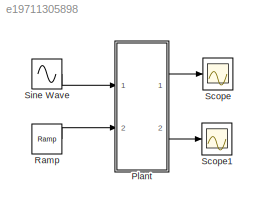
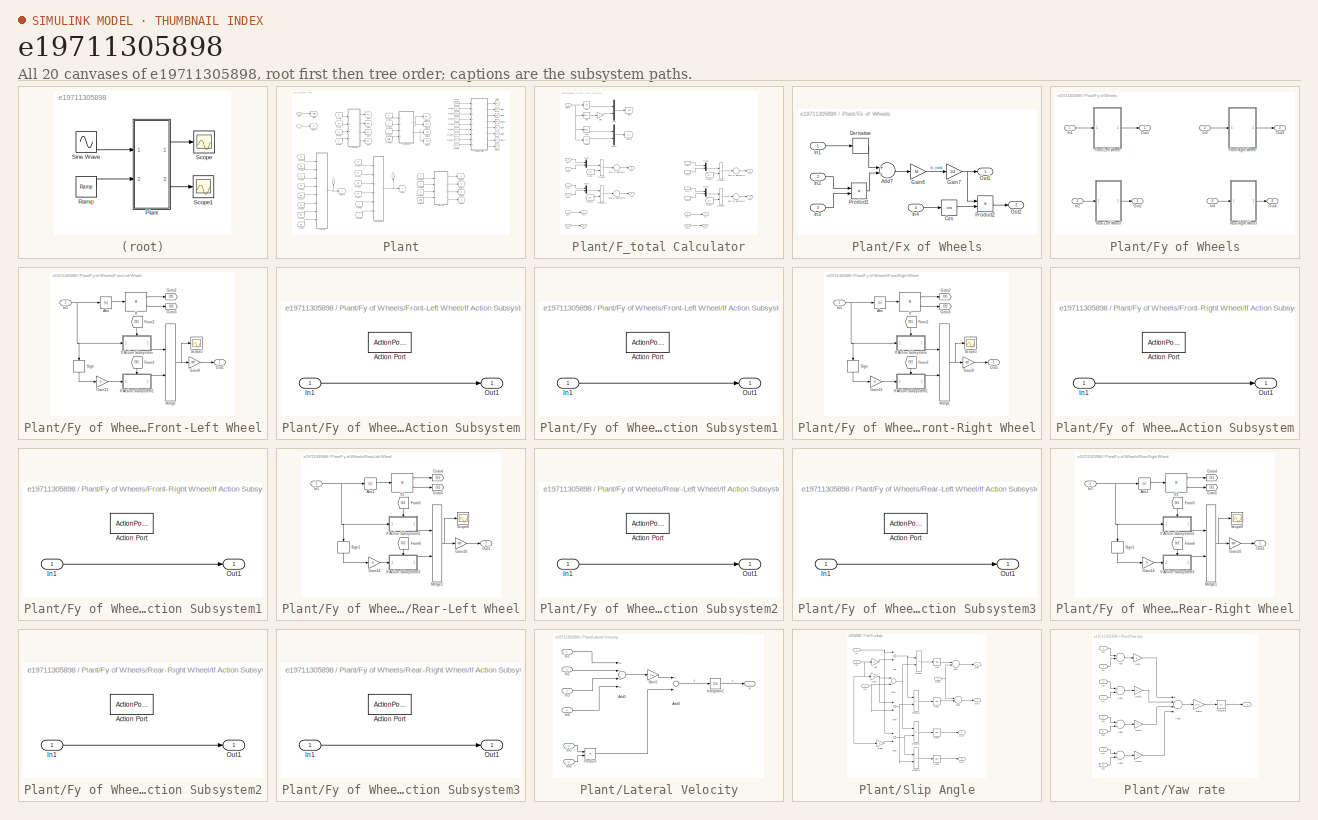
[diagram: thumbnail index - all 20 canvases of the model, root first then tree order]
MODEL slx_e19711305898
KIND model
CONFIG AbsTol = auto
CONFIG EnableMultiTasking = off
CONFIG FixedStep = auto
CONFIG MaxStep = auto
CONFIG MinStep = auto
CONFIG RelTol = 1e-3
CONFIG SampleTimeConstraint = Unconstrained
CONFIG Solver = VariableStepAuto
CONFIG SolverName = VariableStepAuto
CONFIG StartTime = 0.0
CONFIG StopTime = 50
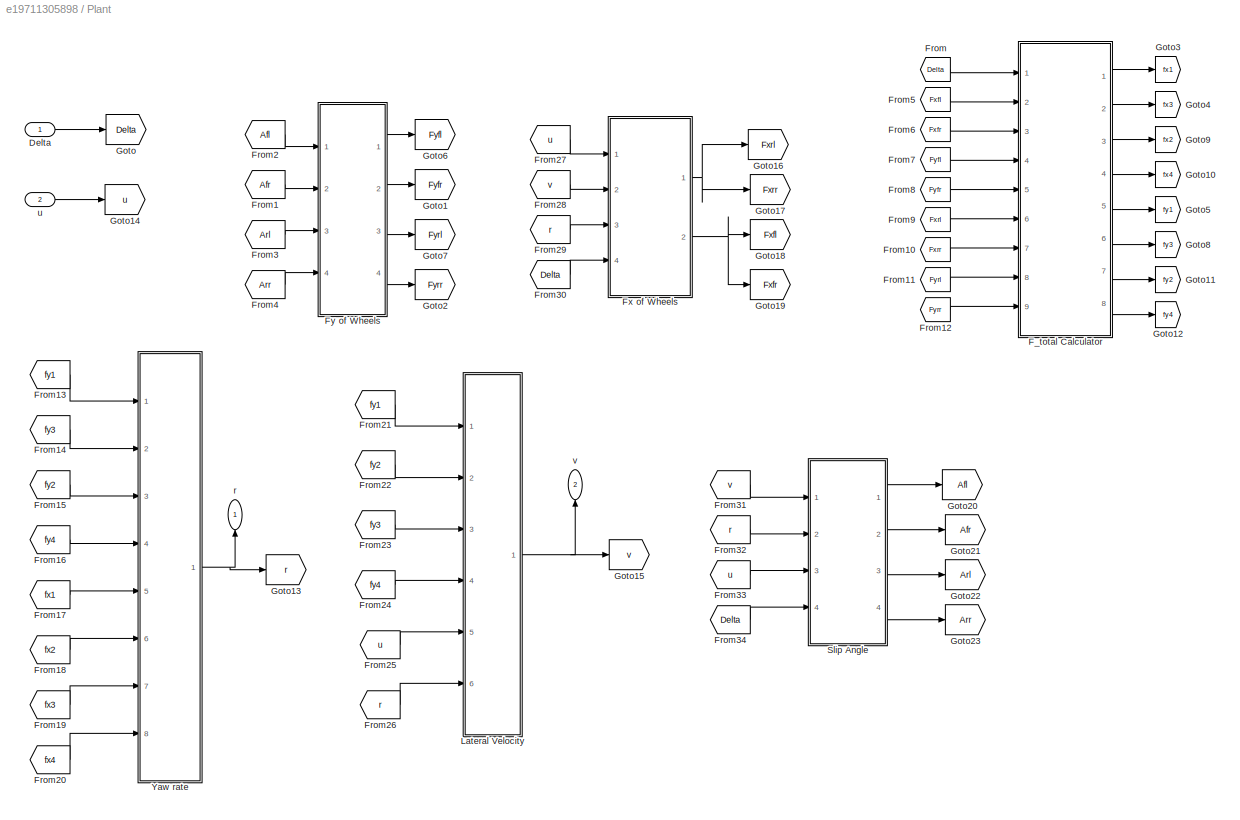
BLOCK [SubSystem] Plant
  Ports = [2, 2]
  RequestExecContextInheritance = off
BLOCK [Inport] Plant/Delta
  IconDisplay = Port number
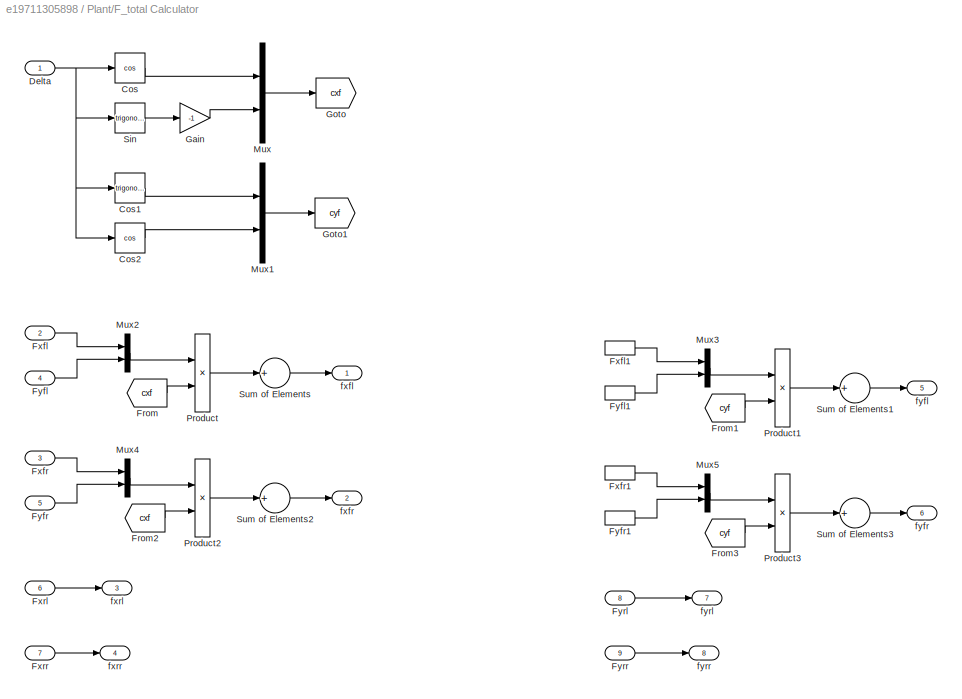
BLOCK [SubSystem] Plant/F_total Calculator
  Ports = [9, 8]
  RequestExecContextInheritance = off
BLOCK [Trigonometry] Plant/F_total Calculator/Cos
  Operator = cos
  Ports = [1, 1]
BLOCK [Trigonometry] Plant/F_total Calculator/Cos1
  Ports = [1, 1]
BLOCK [Trigonometry] Plant/F_total Calculator/Cos2
  Operator = cos
  Ports = [1, 1]
BLOCK [Inport] Plant/F_total Calculator/Delta
  IconDisplay = Port number
BLOCK [From] Plant/F_total Calculator/From
  GotoTag = cxf
BLOCK [From] Plant/F_total Calculator/From1
  GotoTag = cyf
BLOCK [From] Plant/F_total Calculator/From2
  GotoTag = cxf
BLOCK [From] Plant/F_total Calculator/From3
  GotoTag = cyf
BLOCK [Inport] Plant/F_total Calculator/Fxfl
  IconDisplay = Port number
  Port = 2
BLOCK [InportShadow] Plant/F_total Calculator/Fxfl1
  IconDisplay = Port number
  Port = 2
BLOCK [Inport] Plant/F_total Calculator/Fxfr
  IconDisplay = Port number
  Port = 3
BLOCK [InportShadow] Plant/F_total Calculator/Fxfr1
  IconDisplay = Port number
  Port = 3
BLOCK [Inport] Plant/F_total Calculator/Fxrl
  IconDisplay = Port number
  Port = 6
BLOCK [Inport] Plant/F_total Calculator/Fxrr
  IconDisplay = Port number
  Port = 7
BLOCK [Inport] Plant/F_total Calculator/Fyfl
  IconDisplay = Port number
  Port = 4
BLOCK [InportShadow] Plant/F_total Calculator/Fyfl1
  IconDisplay = Port number
  Port = 4
BLOCK [Inport] Plant/F_total Calculator/Fyfr
  IconDisplay = Port number
  Port = 5
BLOCK [InportShadow] Plant/F_total Calculator/Fyfr1
  IconDisplay = Port number
  Port = 5
BLOCK [Inport] Plant/F_total Calculator/Fyrl
  IconDisplay = Port number
  Port = 8
BLOCK [Inport] Plant/F_total Calculator/Fyrr
  IconDisplay = Port number
  Port = 9
BLOCK [Gain] Plant/F_total Calculator/Gain
  Gain = -1
  OutDataTypeStr = Inherit: Inherit via internal rule
  ParamDataTypeStr = Inherit: Inherit via internal rule
  SaturateOnIntegerOverflow = off
BLOCK [Goto] Plant/F_total Calculator/Goto
  GotoTag = cxf
BLOCK [Goto] Plant/F_total Calculator/Goto1
  GotoTag = cyf
BLOCK [Mux] Plant/F_total Calculator/Mux
  DisplayOption = bar
  Inputs = 2
  Ports = [2, 1]
BLOCK [Mux] Plant/F_total Calculator/Mux1
  DisplayOption = bar
  Inputs = 2
  Ports = [2, 1]
BLOCK [Mux] Plant/F_total Calculator/Mux2
  DisplayOption = bar
  Inputs = 2
  Ports = [2, 1]
BLOCK [Mux] Plant/F_total Calculator/Mux3
  DisplayOption = bar
  Inputs = 2
  Ports = [2, 1]
BLOCK [Mux] Plant/F_total Calculator/Mux4
  DisplayOption = bar
  Inputs = 2
  Ports = [2, 1]
BLOCK [Mux] Plant/F_total Calculator/Mux5
  DisplayOption = bar
  Inputs = 2
  Ports = [2, 1]
BLOCK [Product] Plant/F_total Calculator/Product
  InputSameDT = off
  OutDataTypeStr = Inherit: Inherit via internal rule
  Ports = [2, 1]
  RndMeth = Floor
  SaturateOnIntegerOverflow = off
BLOCK [Product] Plant/F_total Calculator/Product1
  InputSameDT = off
  OutDataTypeStr = Inherit: Inherit via internal rule
  Ports = [2, 1]
  RndMeth = Floor
  SaturateOnIntegerOverflow = off
BLOCK [Product] Plant/F_total Calculator/Product2
  InputSameDT = off
  OutDataTypeStr = Inherit: Inherit via internal rule
  Ports = [2, 1]
  RndMeth = Floor
  SaturateOnIntegerOverflow = off
BLOCK [Product] Plant/F_total Calculator/Product3
  InputSameDT = off
  OutDataTypeStr = Inherit: Inherit via internal rule
  Ports = [2, 1]
  RndMeth = Floor
  SaturateOnIntegerOverflow = off
BLOCK [Trigonometry] Plant/F_total Calculator/Sin
  Ports = [1, 1]
BLOCK [Sum] Plant/F_total Calculator/Sum of Elements
  InputSameDT = off
  Inputs = +
  OutDataTypeStr = Inherit: Inherit via internal rule
  Ports = [1, 1]
  SaturateOnIntegerOverflow = off
BLOCK [Sum] Plant/F_total Calculator/Sum of Elements1
  InputSameDT = off
  Inputs = +
  OutDataTypeStr = Inherit: Inherit via internal rule
  Ports = [1, 1]
  SaturateOnIntegerOverflow = off
BLOCK [Sum] Plant/F_total Calculator/Sum of Elements2
  InputSameDT = off
  Inputs = +
  OutDataTypeStr = Inherit: Inherit via internal rule
  Ports = [1, 1]
  SaturateOnIntegerOverflow = off
BLOCK [Sum] Plant/F_total Calculator/Sum of Elements3
  InputSameDT = off
  Inputs = +
  OutDataTypeStr = Inherit: Inherit via internal rule
  Ports = [1, 1]
  SaturateOnIntegerOverflow = off
BLOCK [Outport] Plant/F_total Calculator/fxfl
  IconDisplay = Port number
BLOCK [Outport] Plant/F_total Calculator/fxfr
  IconDisplay = Port number
  Port = 2
BLOCK [Outport] Plant/F_total Calculator/fxrl
  IconDisplay = Port number
  Port = 3
BLOCK [Outport] Plant/F_total Calculator/fxrr
  IconDisplay = Port number
  Port = 4
BLOCK [Outport] Plant/F_total Calculator/fyfl
  IconDisplay = Port number
  Port = 5
BLOCK [Outport] Plant/F_total Calculator/fyfr
  IconDisplay = Port number
  Port = 6
BLOCK [Outport] Plant/F_total Calculator/fyrl
  IconDisplay = Port number
  Port = 7
BLOCK [Outport] Plant/F_total Calculator/fyrr
  IconDisplay = Port number
  Port = 8
BLOCK [From] Plant/From
  GotoTag = Delta
BLOCK [From] Plant/From1
  GotoTag = Afr
BLOCK [From] Plant/From10
  GotoTag = Fxrr
BLOCK [From] Plant/From11
  GotoTag = Fyrl
BLOCK [From] Plant/From12
  GotoTag = Fyrr
BLOCK [From] Plant/From13
  GotoTag = fy1
BLOCK [From] Plant/From14
  GotoTag = fy3
BLOCK [From] Plant/From15
  GotoTag = fy2
BLOCK [From] Plant/From16
  GotoTag = fy4
BLOCK [From] Plant/From17
  GotoTag = fx1
BLOCK [From] Plant/From18
  GotoTag = fx2
BLOCK [From] Plant/From19
  GotoTag = fx3
BLOCK [From] Plant/From2
  GotoTag = Afl
BLOCK [From] Plant/From20
  GotoTag = fx4
BLOCK [From] Plant/From21
  GotoTag = fy1
BLOCK [From] Plant/From22
  GotoTag = fy2
BLOCK [From] Plant/From23
  GotoTag = fy3
BLOCK [From] Plant/From24
  GotoTag = fy4
BLOCK [From] Plant/From25
  GotoTag = u
BLOCK [From] Plant/From26
  GotoTag = r
BLOCK [From] Plant/From27
  GotoTag = u
BLOCK [From] Plant/From28
  GotoTag = v
BLOCK [From] Plant/From29
  GotoTag = r
BLOCK [From] Plant/From3
  GotoTag = Arl
BLOCK [From] Plant/From30
  GotoTag = Delta
BLOCK [From] Plant/From31
  GotoTag = v
BLOCK [From] Plant/From32
  GotoTag = r
BLOCK [From] Plant/From33
  GotoTag = u
BLOCK [From] Plant/From34
  GotoTag = Delta
BLOCK [From] Plant/From4
  GotoTag = Arr
BLOCK [From] Plant/From5
  GotoTag = Fxfl
BLOCK [From] Plant/From6
  GotoTag = Fxfr
BLOCK [From] Plant/From7
  GotoTag = Fyfl
BLOCK [From] Plant/From8
  GotoTag = Fyfr
BLOCK [From] Plant/From9
  GotoTag = Fxrl
BLOCK [SubSystem] Plant/Fx of Wheels
  Ports = [4, 2]
  RequestExecContextInheritance = off
BLOCK [Sum] Plant/Fx of Wheels/Add7
  InputSameDT = off
  Inputs = +-
  OutDataTypeStr = Inherit: Inherit via internal rule
  Ports = [2, 1]
  SaturateOnIntegerOverflow = off
BLOCK [Trigonometry] Plant/Fx of Wheels/Cos
  Operator = cos
  Ports = [1, 1]
BLOCK [Derivative] Plant/Fx of Wheels/Derivative
BLOCK [Gain] Plant/Fx of Wheels/Gain6
  Gain = M
  OutDataTypeStr = Inherit: Inherit via internal rule
  ParamDataTypeStr = Inherit: Inherit via internal rule
  SaturateOnIntegerOverflow = off
BLOCK [Gain] Plant/Fx of Wheels/Gain7
  Gain = 1/4
  OutDataTypeStr = Inherit: Inherit via internal rule
  ParamDataTypeStr = Inherit: Inherit via internal rule
  SaturateOnIntegerOverflow = off
BLOCK [Inport] Plant/Fx of Wheels/In1
  IconDisplay = Port number
BLOCK [Inport] Plant/Fx of Wheels/In2
  IconDisplay = Port number
  Port = 2
BLOCK [Inport] Plant/Fx of Wheels/In3
  IconDisplay = Port number
  Port = 3
BLOCK [Inport] Plant/Fx of Wheels/In4
  IconDisplay = Port number
  Port = 4
BLOCK [Outport] Plant/Fx of Wheels/Out1
  IconDisplay = Port number
BLOCK [Outport] Plant/Fx of Wheels/Out2
  IconDisplay = Port number
  Port = 2
BLOCK [Product] Plant/Fx of Wheels/Product1
  InputSameDT = off
  OutDataTypeStr = Inherit: Inherit via internal rule
  Ports = [2, 1]
  RndMeth = Floor
  SaturateOnIntegerOverflow = off
BLOCK [Product] Plant/Fx of Wheels/Product2
  InputSameDT = off
  Inputs = */
  OutDataTypeStr = Inherit: Inherit via internal rule
  Ports = [2, 1]
  RndMeth = Floor
  SaturateOnIntegerOverflow = off
BLOCK [SubSystem] Plant/Fy of Wheels
  Ports = [4, 4]
  RequestExecContextInheritance = off
BLOCK [SubSystem] Plant/Fy of Wheels/Front-Left Wheel
  Ports = [1, 1]
  RequestExecContextInheritance = off
BLOCK [Abs] Plant/Fy of Wheels/Front-Left Wheel/Abs
  SaturateOnIntegerOverflow = off
BLOCK [From] Plant/Fy of Wheels/Front-Left Wheel/From2
  GotoTag = Of1
BLOCK [From] Plant/Fy of Wheels/Front-Left Wheel/From3
  GotoTag = Of2
BLOCK [Gain] Plant/Fy of Wheels/Front-Left Wheel/Gain13
  Gain = tr
  OutDataTypeStr = Inherit: Inherit via internal rule
  ParamDataTypeStr = Inherit: Inherit via internal rule
  SaturateOnIntegerOverflow = off
BLOCK [Gain] Plant/Fy of Wheels/Front-Left Wheel/Gain9
  Gain = caf
  OutDataTypeStr = Inherit: Inherit via internal rule
  ParamDataTypeStr = Inherit: Inherit via internal rule
  SaturateOnIntegerOverflow = off
BLOCK [Goto] Plant/Fy of Wheels/Front-Left Wheel/Goto2
  GotoTag = Of1
BLOCK [Goto] Plant/Fy of Wheels/Front-Left Wheel/Goto3
  GotoTag = Of2
BLOCK [If] Plant/Fy of Wheels/Front-Left Wheel/If
  IfExpression = u1 <tr
  Ports = [1, 2]
BLOCK [SubSystem] Plant/Fy of Wheels/Front-Left Wheel/If Action Subsystem
  Ports = [1, 1, 0, 0, 0, 0, 0, 1]
  RequestExecContextInheritance = off
  TreatAsAtomicUnit = on
BLOCK [ActionPort] Plant/Fy of Wheels/Front-Left Wheel/If Action Subsystem/Action Port
  ActionPortLabel = if(u1 <tr)
BLOCK [Inport] Plant/Fy of Wheels/Front-Left Wheel/If Action Subsystem/In1
  IconDisplay = Port number
BLOCK [Outport] Plant/Fy of Wheels/Front-Left Wheel/If Action Subsystem/Out1
  IconDisplay = Port number
BLOCK [SubSystem] Plant/Fy of Wheels/Front-Left Wheel/If Action Subsystem1
  Ports = [1, 1, 0, 0, 0, 0, 0, 1]
  RequestExecContextInheritance = off
  TreatAsAtomicUnit = on
BLOCK [ActionPort] Plant/Fy of Wheels/Front-Left Wheel/If Action Subsystem1/Action Port
  ActionPortLabel = else
BLOCK [Inport] Plant/Fy of Wheels/Front-Left Wheel/If Action Subsystem1/In1
  IconDisplay = Port number
BLOCK [Outport] Plant/Fy of Wheels/Front-Left Wheel/If Action Subsystem1/Out1
  IconDisplay = Port number
BLOCK [Inport] Plant/Fy of Wheels/Front-Left Wheel/In1
  IconDisplay = Port number
BLOCK [Merge] Plant/Fy of Wheels/Front-Left Wheel/Merge
  Ports = [2, 1]
BLOCK [Outport] Plant/Fy of Wheels/Front-Left Wheel/Out1
  IconDisplay = Port number
BLOCK [Scope] Plant/Fy of Wheels/Front-Left Wheel/Scope5
  Floating = off
  NumInputPorts = 1
  Ports = [1]
  ScopeSpecificationString = Simulink.scopes.TimeScopeBlockCfg('CurrentConfiguration', extmgr.ConfigurationSet(extmgr.Configuration('Core','General UI',true),extmgr.Configuration('Core','Source UI',true),extmgr.Configuration('Sources','WiredSimulink',true,'DataLoggingVariableName','ScopeData2'),extmgr.Configuration('Visuals','Time Domain',true,'SerializedDisplays',{struct('MinYLimReal','-1.00000','MaxYLimReal','1.00000','YLab...<+1391ch>
BLOCK [Signum] Plant/Fy of Wheels/Front-Left Wheel/Sign
BLOCK [SubSystem] Plant/Fy of Wheels/Front-Right Wheel
  Ports = [1, 1]
  RequestExecContextInheritance = off
BLOCK [Abs] Plant/Fy of Wheels/Front-Right Wheel/Abs
  SaturateOnIntegerOverflow = off
BLOCK [From] Plant/Fy of Wheels/Front-Right Wheel/From2
  GotoTag = Of1
BLOCK [From] Plant/Fy of Wheels/Front-Right Wheel/From3
  GotoTag = Of2
BLOCK [Gain] Plant/Fy of Wheels/Front-Right Wheel/Gain13
  Gain = tr
  OutDataTypeStr = Inherit: Inherit via internal rule
  ParamDataTypeStr = Inherit: Inherit via internal rule
  SaturateOnIntegerOverflow = off
BLOCK [Gain] Plant/Fy of Wheels/Front-Right Wheel/Gain9
  Gain = caf
  OutDataTypeStr = Inherit: Inherit via internal rule
  ParamDataTypeStr = Inherit: Inherit via internal rule
  SaturateOnIntegerOverflow = off
BLOCK [Goto] Plant/Fy of Wheels/Front-Right Wheel/Goto2
  GotoTag = Of1
BLOCK [Goto] Plant/Fy of Wheels/Front-Right Wheel/Goto3
  GotoTag = Of2
BLOCK [If] Plant/Fy of Wheels/Front-Right Wheel/If
  IfExpression = u1 <tr
  Ports = [1, 2]
BLOCK [SubSystem] Plant/Fy of Wheels/Front-Right Wheel/If Action Subsystem
  Ports = [1, 1, 0, 0, 0, 0, 0, 1]
  RequestExecContextInheritance = off
  TreatAsAtomicUnit = on
BLOCK [ActionPort] Plant/Fy of Wheels/Front-Right Wheel/If Action Subsystem/Action Port
  ActionPortLabel = if(u1 <tr)
BLOCK [Inport] Plant/Fy of Wheels/Front-Right Wheel/If Action Subsystem/In1
  IconDisplay = Port number
BLOCK [Outport] Plant/Fy of Wheels/Front-Right Wheel/If Action Subsystem/Out1
  IconDisplay = Port number
BLOCK [SubSystem] Plant/Fy of Wheels/Front-Right Wheel/If Action Subsystem1
  Ports = [1, 1, 0, 0, 0, 0, 0, 1]
  RequestExecContextInheritance = off
  TreatAsAtomicUnit = on
BLOCK [ActionPort] Plant/Fy of Wheels/Front-Right Wheel/If Action Subsystem1/Action Port
  ActionPortLabel = else
BLOCK [Inport] Plant/Fy of Wheels/Front-Right Wheel/If Action Subsystem1/In1
  IconDisplay = Port number
BLOCK [Outport] Plant/Fy of Wheels/Front-Right Wheel/If Action Subsystem1/Out1
  IconDisplay = Port number
BLOCK [Inport] Plant/Fy of Wheels/Front-Right Wheel/In1
  IconDisplay = Port number
BLOCK [Merge] Plant/Fy of Wheels/Front-Right Wheel/Merge
  Ports = [2, 1]
BLOCK [Outport] Plant/Fy of Wheels/Front-Right Wheel/Out1
  IconDisplay = Port number
BLOCK [Scope] Plant/Fy of Wheels/Front-Right Wheel/Scope5
  Floating = off
  NumInputPorts = 1
  Ports = [1]
  ScopeSpecificationString = Simulink.scopes.TimeScopeBlockCfg('CurrentConfiguration', extmgr.ConfigurationSet(extmgr.Configuration('Core','General UI',true),extmgr.Configuration('Core','Source UI',true),extmgr.Configuration('Sources','WiredSimulink',true,'DataLoggingVariableName','ScopeData2'),extmgr.Configuration('Visuals','Time Domain',true,'SerializedDisplays',{struct('MinYLimReal','-1.00000','MaxYLimReal','1.00000','YLab...<+1391ch>
BLOCK [Signum] Plant/Fy of Wheels/Front-Right Wheel/Sign
BLOCK [Inport] Plant/Fy of Wheels/In1
  IconDisplay = Port number
BLOCK [Inport] Plant/Fy of Wheels/In2
  IconDisplay = Port number
  Port = 3
BLOCK [Inport] Plant/Fy of Wheels/In3
  IconDisplay = Port number
  Port = 2
BLOCK [Inport] Plant/Fy of Wheels/In4
  IconDisplay = Port number
  Port = 4
BLOCK [Outport] Plant/Fy of Wheels/Out1
  IconDisplay = Port number
BLOCK [Outport] Plant/Fy of Wheels/Out2
  IconDisplay = Port number
  Port = 3
BLOCK [Outport] Plant/Fy of Wheels/Out3
  IconDisplay = Port number
  Port = 2
BLOCK [Outport] Plant/Fy of Wheels/Out4
  IconDisplay = Port number
  Port = 4
BLOCK [SubSystem] Plant/Fy of Wheels/Rear-Left Wheel
  Ports = [1, 1]
  RequestExecContextInheritance = off
BLOCK [Abs] Plant/Fy of Wheels/Rear-Left Wheel/Abs1
  SaturateOnIntegerOverflow = off
BLOCK [From] Plant/Fy of Wheels/Rear-Left Wheel/From5
  GotoTag = Or1
BLOCK [From] Plant/Fy of Wheels/Rear-Left Wheel/From6
  GotoTag = Or2
BLOCK [Gain] Plant/Fy of Wheels/Rear-Left Wheel/Gain10
  Gain = car
  OutDataTypeStr = Inherit: Inherit via internal rule
  ParamDataTypeStr = Inherit: Inherit via internal rule
  SaturateOnIntegerOverflow = off
BLOCK [Gain] Plant/Fy of Wheels/Rear-Left Wheel/Gain14
  Gain = tr
  OutDataTypeStr = Inherit: Inherit via internal rule
  ParamDataTypeStr = Inherit: Inherit via internal rule
  SaturateOnIntegerOverflow = off
BLOCK [Goto] Plant/Fy of Wheels/Rear-Left Wheel/Goto4
  GotoTag = Or1
BLOCK [Goto] Plant/Fy of Wheels/Rear-Left Wheel/Goto5
  GotoTag = Or2
BLOCK [SubSystem] Plant/Fy of Wheels/Rear-Left Wheel/If Action Subsystem2
  Ports = [1, 1, 0, 0, 0, 0, 0, 1]
  RequestExecContextInheritance = off
  TreatAsAtomicUnit = on
BLOCK [ActionPort] Plant/Fy of Wheels/Rear-Left Wheel/If Action Subsystem2/Action Port
  ActionPortLabel = if(u1 <tr)
BLOCK [Inport] Plant/Fy of Wheels/Rear-Left Wheel/If Action Subsystem2/In1
  IconDisplay = Port number
BLOCK [Outport] Plant/Fy of Wheels/Rear-Left Wheel/If Action Subsystem2/Out1
  IconDisplay = Port number
BLOCK [SubSystem] Plant/Fy of Wheels/Rear-Left Wheel/If Action Subsystem3
  Ports = [1, 1, 0, 0, 0, 0, 0, 1]
  RequestExecContextInheritance = off
  TreatAsAtomicUnit = on
BLOCK [ActionPort] Plant/Fy of Wheels/Rear-Left Wheel/If Action Subsystem3/Action Port
  ActionPortLabel = else
BLOCK [Inport] Plant/Fy of Wheels/Rear-Left Wheel/If Action Subsystem3/In1
  IconDisplay = Port number
BLOCK [Outport] Plant/Fy of Wheels/Rear-Left Wheel/If Action Subsystem3/Out1
  IconDisplay = Port number
BLOCK [If] Plant/Fy of Wheels/Rear-Left Wheel/If1
  IfExpression = u1 <tr
  Ports = [1, 2]
BLOCK [Inport] Plant/Fy of Wheels/Rear-Left Wheel/In1
  IconDisplay = Port number
BLOCK [Merge] Plant/Fy of Wheels/Rear-Left Wheel/Merge1
  Ports = [2, 1]
BLOCK [Outport] Plant/Fy of Wheels/Rear-Left Wheel/Out1
  IconDisplay = Port number
BLOCK [Scope] Plant/Fy of Wheels/Rear-Left Wheel/Scope6
  Floating = off
  NumInputPorts = 1
  Ports = [1]
  ScopeSpecificationString = Simulink.scopes.TimeScopeBlockCfg('CurrentConfiguration', extmgr.ConfigurationSet(extmgr.Configuration('Core','General UI',true),extmgr.Configuration('Core','Source UI',true),extmgr.Configuration('Sources','WiredSimulink',true,'DataLoggingVariableName','ScopeData3'),extmgr.Configuration('Visuals','Time Domain',true,'SerializedDisplays',{struct('MinYLimReal','-0.01991','MaxYLimReal','0.13749','YLab...<+1417ch>
BLOCK [Signum] Plant/Fy of Wheels/Rear-Left Wheel/Sign1
BLOCK [SubSystem] Plant/Fy of Wheels/Rear-Right Wheel
  Ports = [1, 1]
  RequestExecContextInheritance = off
BLOCK [Abs] Plant/Fy of Wheels/Rear-Right Wheel/Abs1
  SaturateOnIntegerOverflow = off
BLOCK [From] Plant/Fy of Wheels/Rear-Right Wheel/From5
  GotoTag = Or1
BLOCK [From] Plant/Fy of Wheels/Rear-Right Wheel/From6
  GotoTag = Or2
BLOCK [Gain] Plant/Fy of Wheels/Rear-Right Wheel/Gain10
  Gain = car
  OutDataTypeStr = Inherit: Inherit via internal rule
  ParamDataTypeStr = Inherit: Inherit via internal rule
  SaturateOnIntegerOverflow = off
BLOCK [Gain] Plant/Fy of Wheels/Rear-Right Wheel/Gain14
  Gain = tr
  OutDataTypeStr = Inherit: Inherit via internal rule
  ParamDataTypeStr = Inherit: Inherit via internal rule
  SaturateOnIntegerOverflow = off
BLOCK [Goto] Plant/Fy of Wheels/Rear-Right Wheel/Goto4
  GotoTag = Or1
BLOCK [Goto] Plant/Fy of Wheels/Rear-Right Wheel/Goto5
  GotoTag = Or2
BLOCK [SubSystem] Plant/Fy of Wheels/Rear-Right Wheel/If Action Subsystem2
  Ports = [1, 1, 0, 0, 0, 0, 0, 1]
  RequestExecContextInheritance = off
  TreatAsAtomicUnit = on
BLOCK [ActionPort] Plant/Fy of Wheels/Rear-Right Wheel/If Action Subsystem2/Action Port
  ActionPortLabel = if(u1 <tr)
BLOCK [Inport] Plant/Fy of Wheels/Rear-Right Wheel/If Action Subsystem2/In1
  IconDisplay = Port number
BLOCK [Outport] Plant/Fy of Wheels/Rear-Right Wheel/If Action Subsystem2/Out1
  IconDisplay = Port number
BLOCK [SubSystem] Plant/Fy of Wheels/Rear-Right Wheel/If Action Subsystem3
  Ports = [1, 1, 0, 0, 0, 0, 0, 1]
  RequestExecContextInheritance = off
  TreatAsAtomicUnit = on
BLOCK [ActionPort] Plant/Fy of Wheels/Rear-Right Wheel/If Action Subsystem3/Action Port
  ActionPortLabel = else
BLOCK [Inport] Plant/Fy of Wheels/Rear-Right Wheel/If Action Subsystem3/In1
  IconDisplay = Port number
BLOCK [Outport] Plant/Fy of Wheels/Rear-Right Wheel/If Action Subsystem3/Out1
  IconDisplay = Port number
BLOCK [If] Plant/Fy of Wheels/Rear-Right Wheel/If1
  IfExpression = u1 <tr
  Ports = [1, 2]
BLOCK [Inport] Plant/Fy of Wheels/Rear-Right Wheel/In1
  IconDisplay = Port number
BLOCK [Merge] Plant/Fy of Wheels/Rear-Right Wheel/Merge1
  Ports = [2, 1]
BLOCK [Outport] Plant/Fy of Wheels/Rear-Right Wheel/Out1
  IconDisplay = Port number
BLOCK [Scope] Plant/Fy of Wheels/Rear-Right Wheel/Scope6
  Floating = off
  NumInputPorts = 1
  Ports = [1]
  ScopeSpecificationString = Simulink.scopes.TimeScopeBlockCfg('CurrentConfiguration', extmgr.ConfigurationSet(extmgr.Configuration('Core','General UI',true),extmgr.Configuration('Core','Source UI',true),extmgr.Configuration('Sources','WiredSimulink',true,'DataLoggingVariableName','ScopeData3'),extmgr.Configuration('Visuals','Time Domain',true,'SerializedDisplays',{struct('MinYLimReal','-0.01991','MaxYLimReal','0.13749','YLab...<+1417ch>
BLOCK [Signum] Plant/Fy of Wheels/Rear-Right Wheel/Sign1
BLOCK [Goto] Plant/Goto
  GotoTag = Delta
BLOCK [Goto] Plant/Goto1
  GotoTag = Fyfr
BLOCK [Goto] Plant/Goto10
  GotoTag = fx4
BLOCK [Goto] Plant/Goto11
  GotoTag = fy2
BLOCK [Goto] Plant/Goto12
  GotoTag = fy4
BLOCK [Goto] Plant/Goto13
  GotoTag = r
BLOCK [Goto] Plant/Goto14
  GotoTag = u
BLOCK [Goto] Plant/Goto15
  GotoTag = v
BLOCK [Goto] Plant/Goto16
  GotoTag = Fxrl
BLOCK [Goto] Plant/Goto17
  GotoTag = Fxrr
BLOCK [Goto] Plant/Goto18
  GotoTag = Fxfl
BLOCK [Goto] Plant/Goto19
  GotoTag = Fxfr
BLOCK [Goto] Plant/Goto2
  GotoTag = Fyrr
BLOCK [Goto] Plant/Goto20
  GotoTag = Afl
BLOCK [Goto] Plant/Goto21
  GotoTag = Afr
BLOCK [Goto] Plant/Goto22
  GotoTag = Arl
BLOCK [Goto] Plant/Goto23
  GotoTag = Arr
BLOCK [Goto] Plant/Goto3
  GotoTag = fx1
BLOCK [Goto] Plant/Goto4
  GotoTag = fx3
BLOCK [Goto] Plant/Goto5
  GotoTag = fy1
BLOCK [Goto] Plant/Goto6
  GotoTag = Fyfl
BLOCK [Goto] Plant/Goto7
  GotoTag = Fyrl
BLOCK [Goto] Plant/Goto8
  GotoTag = fy3
BLOCK [Goto] Plant/Goto9
  GotoTag = fx2
BLOCK [SubSystem] Plant/Lateral Velocity
  Ports = [6, 1]
  RequestExecContextInheritance = off
BLOCK [Sum] Plant/Lateral Velocity/Add5
  InputSameDT = off
  Inputs = ++++
  OutDataTypeStr = Inherit: Inherit via internal rule
  Ports = [4, 1]
  SaturateOnIntegerOverflow = off
BLOCK [Sum] Plant/Lateral Velocity/Add6
  InputSameDT = off
  Inputs = +-
  OutDataTypeStr = Inherit: Inherit via internal rule
  Ports = [2, 1]
  SaturateOnIntegerOverflow = off
BLOCK [Gain] Plant/Lateral Velocity/Gain5
  Gain = 1/M
  OutDataTypeStr = Inherit: Inherit via internal rule
  ParamDataTypeStr = Inherit: Inherit via internal rule
  SaturateOnIntegerOverflow = off
BLOCK [Inport] Plant/Lateral Velocity/In1
  IconDisplay = Port number
BLOCK [Inport] Plant/Lateral Velocity/In2
  IconDisplay = Port number
  Port = 2
BLOCK [Inport] Plant/Lateral Velocity/In3
  IconDisplay = Port number
  Port = 3
BLOCK [Inport] Plant/Lateral Velocity/In4
  IconDisplay = Port number
  Port = 4
BLOCK [Inport] Plant/Lateral Velocity/In5
  IconDisplay = Port number
  Port = 5
BLOCK [Inport] Plant/Lateral Velocity/In6
  IconDisplay = Port number
  Port = 6
BLOCK [Integrator] Plant/Lateral Velocity/Integrator1
  Ports = [1, 1]
BLOCK [Product] Plant/Lateral Velocity/Product
  InputSameDT = off
  OutDataTypeStr = Inherit: Inherit via internal rule
  Ports = [2, 1]
  RndMeth = Floor
  SaturateOnIntegerOverflow = off
BLOCK [Outport] Plant/Lateral Velocity/v
  IconDisplay = Port number
BLOCK [SubSystem] Plant/Slip Angle
  Ports = [4, 4]
  RequestExecContextInheritance = off
BLOCK [Sum] Plant/Slip Angle/Add
  InputSameDT = off
  OutDataTypeStr = Inherit: Inherit via internal rule
  Ports = [2, 1]
  SaturateOnIntegerOverflow = off
BLOCK [Sum] Plant/Slip Angle/Add1
  InputSameDT = off
  OutDataTypeStr = Inherit: Inherit via internal rule
  Ports = [2, 1]
  SaturateOnIntegerOverflow = off
BLOCK [Sum] Plant/Slip Angle/Add2
  InputSameDT = off
  Inputs = -+
  OutDataTypeStr = Inherit: Inherit via internal rule
  Ports = [2, 1]
  SaturateOnIntegerOverflow = off
BLOCK [Sum] Plant/Slip Angle/Add4
  InputSameDT = off
  Inputs = -+
  OutDataTypeStr = Inherit: Inherit via internal rule
  Ports = [2, 1]
  SaturateOnIntegerOverflow = off
BLOCK [Sum] Plant/Slip Angle/Add5
  InputSameDT = off
  Inputs = +-
  OutDataTypeStr = Inherit: Inherit via internal rule
  Ports = [2, 1]
  SaturateOnIntegerOverflow = off
BLOCK [Sum] Plant/Slip Angle/Add6
  InputSameDT = off
  Inputs = -+
  OutDataTypeStr = Inherit: Inherit via internal rule
  Ports = [2, 1]
  SaturateOnIntegerOverflow = off
BLOCK [Trigonometry] Plant/Slip Angle/Atan
  Operator = atan
  Ports = [1, 1]
BLOCK [Trigonometry] Plant/Slip Angle/Atan1
  Operator = atan
  Ports = [1, 1]
BLOCK [Trigonometry] Plant/Slip Angle/Atan2
  Operator = atan
  Ports = [1, 1]
BLOCK [Trigonometry] Plant/Slip Angle/Atan3
  Operator = atan
  Ports = [1, 1]
BLOCK [Inport] Plant/Slip Angle/Delta
  IconDisplay = Port number
  Port = 4
BLOCK [Gain] Plant/Slip Angle/Gain
  Gain = a
  OutDataTypeStr = Inherit: Inherit via internal rule
  ParamDataTypeStr = Inherit: Inherit via internal rule
  SaturateOnIntegerOverflow = off
BLOCK [Gain] Plant/Slip Angle/Gain1
  Gain = T/2
  OutDataTypeStr = Inherit: Inherit via internal rule
  ParamDataTypeStr = Inherit: Inherit via internal rule
  SaturateOnIntegerOverflow = off
BLOCK [Gain] Plant/Slip Angle/Gain2
  Gain = b
  OutDataTypeStr = Inherit: Inherit via internal rule
  ParamDataTypeStr = Inherit: Inherit via internal rule
  SaturateOnIntegerOverflow = off
BLOCK [Inport] Plant/Slip Angle/In1
  IconDisplay = Port number
BLOCK [Inport] Plant/Slip Angle/In2
  IconDisplay = Port number
  Port = 2
BLOCK [Inport] Plant/Slip Angle/In3
  IconDisplay = Port number
  Port = 3
BLOCK [Outport] Plant/Slip Angle/Out1
  IconDisplay = Port number
BLOCK [Outport] Plant/Slip Angle/Out2
  IconDisplay = Port number
  Port = 2
BLOCK [Outport] Plant/Slip Angle/Out3
  IconDisplay = Port number
  Port = 3
BLOCK [Outport] Plant/Slip Angle/Out4
  IconDisplay = Port number
  Port = 4
BLOCK [Product] Plant/Slip Angle/Product
  InputSameDT = off
  Inputs = */
  OutDataTypeStr = Inherit: Inherit via internal rule
  Ports = [2, 1]
  RndMeth = Floor
  SaturateOnIntegerOverflow = off
BLOCK [Product] Plant/Slip Angle/Product1
  InputSameDT = off
  Inputs = */
  OutDataTypeStr = Inherit: Inherit via internal rule
  Ports = [2, 1]
  RndMeth = Floor
  SaturateOnIntegerOverflow = off
BLOCK [Product] Plant/Slip Angle/Product2
  InputSameDT = off
  Inputs = /*
  OutDataTypeStr = Inherit: Inherit via internal rule
  Ports = [2, 1]
  RndMeth = Floor
  SaturateOnIntegerOverflow = off
BLOCK [Product] Plant/Slip Angle/Product3
  InputSameDT = off
  Inputs = */
  OutDataTypeStr = Inherit: Inherit via internal rule
  Ports = [2, 1]
  RndMeth = Floor
  SaturateOnIntegerOverflow = off
BLOCK [SubSystem] Plant/Yaw rate
  Ports = [8, 1]
  RequestExecContextInheritance = off
BLOCK [Sum] Plant/Yaw rate/Add
  InputSameDT = off
  OutDataTypeStr = Inherit: Inherit via internal rule
  Ports = [2, 1]
  SaturateOnIntegerOverflow = off
BLOCK [Sum] Plant/Yaw rate/Add1
  InputSameDT = off
  OutDataTypeStr = Inherit: Inherit via internal rule
  Ports = [2, 1]
  SaturateOnIntegerOverflow = off
BLOCK [Sum] Plant/Yaw rate/Add2
  InputSameDT = off
  OutDataTypeStr = Inherit: Inherit via internal rule
  Ports = [2, 1]
  SaturateOnIntegerOverflow = off
BLOCK [Sum] Plant/Yaw rate/Add3
  InputSameDT = off
  OutDataTypeStr = Inherit: Inherit via internal rule
  Ports = [2, 1]
  SaturateOnIntegerOverflow = off
BLOCK [Sum] Plant/Yaw rate/Add4
  InputSameDT = off
  Inputs = +-+-
  OutDataTypeStr = Inherit: Inherit via internal rule
  Ports = [4, 1]
  SaturateOnIntegerOverflow = off
BLOCK [Gain] Plant/Yaw rate/Gain
  Gain = a
  OutDataTypeStr = Inherit: Inherit via internal rule
  ParamDataTypeStr = Inherit: Inherit via internal rule
  SaturateOnIntegerOverflow = off
BLOCK [Gain] Plant/Yaw rate/Gain1
  Gain = b
  OutDataTypeStr = Inherit: Inherit via internal rule
  ParamDataTypeStr = Inherit: Inherit via internal rule
  SaturateOnIntegerOverflow = off
BLOCK [Gain] Plant/Yaw rate/Gain2
  Gain = T/2
  OutDataTypeStr = Inherit: Inherit via internal rule
  ParamDataTypeStr = Inherit: Inherit via internal rule
  SaturateOnIntegerOverflow = off
BLOCK [Gain] Plant/Yaw rate/Gain3
  Gain = T/2
  OutDataTypeStr = Inherit: Inherit via internal rule
  ParamDataTypeStr = Inherit: Inherit via internal rule
  SaturateOnIntegerOverflow = off
BLOCK [Gain] Plant/Yaw rate/Gain4
  Gain = 1/Iz
  OutDataTypeStr = Inherit: Inherit via internal rule
  ParamDataTypeStr = Inherit: Inherit via internal rule
  SaturateOnIntegerOverflow = off
BLOCK [Inport] Plant/Yaw rate/In1
  IconDisplay = Port number
BLOCK [Inport] Plant/Yaw rate/In2
  IconDisplay = Port number
  Port = 2
BLOCK [Inport] Plant/Yaw rate/In3
  IconDisplay = Port number
  Port = 3
BLOCK [Inport] Plant/Yaw rate/In4
  IconDisplay = Port number
  Port = 4
BLOCK [Inport] Plant/Yaw rate/In5
  IconDisplay = Port number
  Port = 5
BLOCK [Inport] Plant/Yaw rate/In6
  IconDisplay = Port number
  Port = 6
BLOCK [Inport] Plant/Yaw rate/In7
  IconDisplay = Port number
  Port = 7
BLOCK [Inport] Plant/Yaw rate/In8
  IconDisplay = Port number
  Port = 8
BLOCK [Integrator] Plant/Yaw rate/Integrator
  Ports = [1, 1]
BLOCK [Outport] Plant/Yaw rate/r
  IconDisplay = Port number
BLOCK [Outport] Plant/r
  IconDisplay = Port number
BLOCK [Inport] Plant/u
  IconDisplay = Port number
  Port = 2
BLOCK [Outport] Plant/v
  IconDisplay = Port number
  Port = 2
BLOCK [Reference] Ramp  REF=simulink/Sources/Ramp
  Ports = [0, 1]
  SourceBlock = simulink/Sources/Ramp
  SourceProductBaseCode = SL
  SourceProductName = Simulink
  SourceType = Ramp
BLOCK [Scope] Scope
  Floating = off
  NumInputPorts = 1
  Ports = [1]
  ScopeSpecificationString = Simulink.scopes.TimeScopeBlockCfg('CurrentConfiguration', extmgr.ConfigurationSet(extmgr.Configuration('Core','General UI',true),extmgr.Configuration('Core','Source UI',true),extmgr.Configuration('Sources','WiredSimulink',true,'DataLoggingVariableName','ScopeData1'),extmgr.Configuration('Visuals','Time Domain',true,'SerializedDisplays',{struct('MinYLimReal','-0.82445','MaxYLimReal','0.85112','YLab...<+1366ch>
BLOCK [Scope] Scope1
  Floating = off
  NumInputPorts = 1
  Ports = [1]
  ScopeSpecificationString = Simulink.scopes.TimeScopeBlockCfg('CurrentConfiguration', extmgr.ConfigurationSet(extmgr.Configuration('Core','General UI',true),extmgr.Configuration('Core','Source UI',true),extmgr.Configuration('Sources','WiredSimulink',true,'DataLoggingVariableName','ScopeData2'),extmgr.Configuration('Visuals','Time Domain',true,'SerializedDisplays',{struct('MinYLimReal','-0.46244','MaxYLimReal','0.4976','YLabe...<+1362ch>
BLOCK [Sin] Sine Wave
  Amplitude = 6*pi/180
  Ports = [0, 1]
  SampleTime = 0
LINE Plant/Delta:1 -> Plant/Goto:1
LINE Plant/F_total Calculator/Cos1:1 -> Plant/F_total Calculator/Mux1:1
LINE Plant/F_total Calculator/Cos2:1 -> Plant/F_total Calculator/Mux1:2
LINE Plant/F_total Calculator/Cos:1 -> Plant/F_total Calculator/Mux:1
NET Plant/F_total Calculator/Delta:1 -> Plant/F_total Calculator/Cos1:1, Plant/F_total Calculator/Cos2:1, Plant/F_total Calculator/Cos:1, Plant/F_total Calculator/Sin:1
LINE Plant/F_total Calculator/From1:1 -> Plant/F_total Calculator/Product1:2
LINE Plant/F_total Calculator/From2:1 -> Plant/F_total Calculator/Product2:2
LINE Plant/F_total Calculator/From3:1 -> Plant/F_total Calculator/Product3:2
LINE Plant/F_total Calculator/From:1 -> Plant/F_total Calculator/Product:2
LINE Plant/F_total Calculator/Fxfl1:1 -> Plant/F_total Calculator/Mux3:1
LINE Plant/F_total Calculator/Fxfl:1 -> Plant/F_total Calculator/Mux2:1
LINE Plant/F_total Calculator/Fxfr1:1 -> Plant/F_total Calculator/Mux5:1
LINE Plant/F_total Calculator/Fxfr:1 -> Plant/F_total Calculator/Mux4:1
LINE Plant/F_total Calculator/Fxrl:1 -> Plant/F_total Calculator/fxrl:1
LINE Plant/F_total Calculator/Fxrr:1 -> Plant/F_total Calculator/fxrr:1
LINE Plant/F_total Calculator/Fyfl1:1 -> Plant/F_total Calculator/Mux3:2
LINE Plant/F_total Calculator/Fyfl:1 -> Plant/F_total Calculator/Mux2:2
LINE Plant/F_total Calculator/Fyfr1:1 -> Plant/F_total Calculator/Mux5:2
LINE Plant/F_total Calculator/Fyfr:1 -> Plant/F_total Calculator/Mux4:2
LINE Plant/F_total Calculator/Fyrl:1 -> Plant/F_total Calculator/fyrl:1
LINE Plant/F_total Calculator/Fyrr:1 -> Plant/F_total Calculator/fyrr:1
LINE Plant/F_total Calculator/Gain:1 -> Plant/F_total Calculator/Mux:2
LINE Plant/F_total Calculator/Mux1:1 -> Plant/F_total Calculator/Goto1:1
LINE Plant/F_total Calculator/Mux2:1 -> Plant/F_total Calculator/Product:1
LINE Plant/F_total Calculator/Mux3:1 -> Plant/F_total Calculator/Product1:1
LINE Plant/F_total Calculator/Mux4:1 -> Plant/F_total Calculator/Product2:1
LINE Plant/F_total Calculator/Mux5:1 -> Plant/F_total Calculator/Product3:1
LINE Plant/F_total Calculator/Mux:1 -> Plant/F_total Calculator/Goto:1
LINE Plant/F_total Calculator/Product1:1 -> Plant/F_total Calculator/Sum of Elements1:1
LINE Plant/F_total Calculator/Product2:1 -> Plant/F_total Calculator/Sum of Elements2:1
LINE Plant/F_total Calculator/Product3:1 -> Plant/F_total Calculator/Sum of Elements3:1
LINE Plant/F_total Calculator/Product:1 -> Plant/F_total Calculator/Sum of Elements:1
LINE Plant/F_total Calculator/Sin:1 -> Plant/F_total Calculator/Gain:1
LINE Plant/F_total Calculator/Sum of Elements1:1 -> Plant/F_total Calculator/fyfl:1
LINE Plant/F_total Calculator/Sum of Elements2:1 -> Plant/F_total Calculator/fxfr:1
LINE Plant/F_total Calculator/Sum of Elements3:1 -> Plant/F_total Calculator/fyfr:1
LINE Plant/F_total Calculator/Sum of Elements:1 -> Plant/F_total Calculator/fxfl:1
LINE Plant/F_total Calculator:1 -> Plant/Goto3:1
LINE Plant/F_total Calculator:2 -> Plant/Goto4:1
LINE Plant/F_total Calculator:3 -> Plant/Goto9:1
LINE Plant/F_total Calculator:4 -> Plant/Goto10:1
LINE Plant/F_total Calculator:5 -> Plant/Goto5:1
LINE Plant/F_total Calculator:6 -> Plant/Goto8:1
LINE Plant/F_total Calculator:7 -> Plant/Goto11:1
LINE Plant/F_total Calculator:8 -> Plant/Goto12:1
LINE Plant/From10:1 -> Plant/F_total Calculator:7
LINE Plant/From11:1 -> Plant/F_total Calculator:8
LINE Plant/From12:1 -> Plant/F_total Calculator:9
LINE Plant/From13:1 -> Plant/Yaw rate:1
LINE Plant/From14:1 -> Plant/Yaw rate:2
LINE Plant/From15:1 -> Plant/Yaw rate:3
LINE Plant/From16:1 -> Plant/Yaw rate:4
LINE Plant/From17:1 -> Plant/Yaw rate:5
LINE Plant/From18:1 -> Plant/Yaw rate:6
LINE Plant/From19:1 -> Plant/Yaw rate:7
LINE Plant/From1:1 -> Plant/Fy of Wheels:2
LINE Plant/From20:1 -> Plant/Yaw rate:8
LINE Plant/From21:1 -> Plant/Lateral Velocity:1
LINE Plant/From22:1 -> Plant/Lateral Velocity:2
LINE Plant/From23:1 -> Plant/Lateral Velocity:3
LINE Plant/From24:1 -> Plant/Lateral Velocity:4
LINE Plant/From25:1 -> Plant/Lateral Velocity:5
LINE Plant/From26:1 -> Plant/Lateral Velocity:6
LINE Plant/From27:1 -> Plant/Fx of Wheels:1
LINE Plant/From28:1 -> Plant/Fx of Wheels:2
LINE Plant/From29:1 -> Plant/Fx of Wheels:3
LINE Plant/From2:1 -> Plant/Fy of Wheels:1
LINE Plant/From30:1 -> Plant/Fx of Wheels:4
LINE Plant/From31:1 -> Plant/Slip Angle:1
LINE Plant/From32:1 -> Plant/Slip Angle:2
LINE Plant/From33:1 -> Plant/Slip Angle:3
LINE Plant/From34:1 -> Plant/Slip Angle:4
LINE Plant/From3:1 -> Plant/Fy of Wheels:3
LINE Plant/From4:1 -> Plant/Fy of Wheels:4
LINE Plant/From5:1 -> Plant/F_total Calculator:2
LINE Plant/From6:1 -> Plant/F_total Calculator:3
LINE Plant/From7:1 -> Plant/F_total Calculator:4
LINE Plant/From8:1 -> Plant/F_total Calculator:5
LINE Plant/From9:1 -> Plant/F_total Calculator:6
LINE Plant/From:1 -> Plant/F_total Calculator:1
LINE Plant/Fx of Wheels/Add7:1 -> Plant/Fx of Wheels/Gain6:1
LINE Plant/Fx of Wheels/Cos:1 -> Plant/Fx of Wheels/Product2:2
LINE Plant/Fx of Wheels/Derivative:1 -> Plant/Fx of Wheels/Add7:1
LINE Plant/Fx of Wheels/Gain6:1 -> Plant/Fx of Wheels/Gain7:1
NET Plant/Fx of Wheels/Gain7:1 -> Plant/Fx of Wheels/Out1:1, Plant/Fx of Wheels/Product2:1
LINE Plant/Fx of Wheels/In1:1 -> Plant/Fx of Wheels/Derivative:1
LINE Plant/Fx of Wheels/In2:1 -> Plant/Fx of Wheels/Product1:1
LINE Plant/Fx of Wheels/In3:1 -> Plant/Fx of Wheels/Product1:2
LINE Plant/Fx of Wheels/In4:1 -> Plant/Fx of Wheels/Cos:1
LINE Plant/Fx of Wheels/Product1:1 -> Plant/Fx of Wheels/Add7:2
LINE Plant/Fx of Wheels/Product2:1 -> Plant/Fx of Wheels/Out2:1
NET Plant/Fx of Wheels:1 -> Plant/Goto16:1, Plant/Goto17:1
NET Plant/Fx of Wheels:2 -> Plant/Goto18:1, Plant/Goto19:1
LINE Plant/Fy of Wheels/Front-Left Wheel/Abs:1 -> Plant/Fy of Wheels/Front-Left Wheel/If:1
LINE Plant/Fy of Wheels/Front-Left Wheel/From2:1 -> Plant/Fy of Wheels/Front-Left Wheel/If Action Subsystem:ifaction
LINE Plant/Fy of Wheels/Front-Left Wheel/From3:1 -> Plant/Fy of Wheels/Front-Left Wheel/If Action Subsystem1:ifaction
LINE Plant/Fy of Wheels/Front-Left Wheel/Gain13:1 -> Plant/Fy of Wheels/Front-Left Wheel/If Action Subsystem1:1
LINE Plant/Fy of Wheels/Front-Left Wheel/Gain9:1 -> Plant/Fy of Wheels/Front-Left Wheel/Out1:1
LINE Plant/Fy of Wheels/Front-Left Wheel/If Action Subsystem/In1:1 -> Plant/Fy of Wheels/Front-Left Wheel/If Action Subsystem/Out1:1
LINE Plant/Fy of Wheels/Front-Left Wheel/If Action Subsystem1/In1:1 -> Plant/Fy of Wheels/Front-Left Wheel/If Action Subsystem1/Out1:1
LINE Plant/Fy of Wheels/Front-Left Wheel/If Action Subsystem1:1 -> Plant/Fy of Wheels/Front-Left Wheel/Merge:2
LINE Plant/Fy of Wheels/Front-Left Wheel/If Action Subsystem:1 -> Plant/Fy of Wheels/Front-Left Wheel/Merge:1
LINE Plant/Fy of Wheels/Front-Left Wheel/If:1 -> Plant/Fy of Wheels/Front-Left Wheel/Goto2:1
LINE Plant/Fy of Wheels/Front-Left Wheel/If:2 -> Plant/Fy of Wheels/Front-Left Wheel/Goto3:1
NET Plant/Fy of Wheels/Front-Left Wheel/In1:1 -> Plant/Fy of Wheels/Front-Left Wheel/Abs:1, Plant/Fy of Wheels/Front-Left Wheel/If Action Subsystem:1, Plant/Fy of Wheels/Front-Left Wheel/Sign:1
NET Plant/Fy of Wheels/Front-Left Wheel/Merge:1 -> Plant/Fy of Wheels/Front-Left Wheel/Gain9:1, Plant/Fy of Wheels/Front-Left Wheel/Scope5:1
LINE Plant/Fy of Wheels/Front-Left Wheel/Sign:1 -> Plant/Fy of Wheels/Front-Left Wheel/Gain13:1
LINE Plant/Fy of Wheels/Front-Left Wheel:1 -> Plant/Fy of Wheels/Out1:1
LINE Plant/Fy of Wheels/Front-Right Wheel/Abs:1 -> Plant/Fy of Wheels/Front-Right Wheel/If:1
LINE Plant/Fy of Wheels/Front-Right Wheel/From2:1 -> Plant/Fy of Wheels/Front-Right Wheel/If Action Subsystem:ifaction
LINE Plant/Fy of Wheels/Front-Right Wheel/From3:1 -> Plant/Fy of Wheels/Front-Right Wheel/If Action Subsystem1:ifaction
LINE Plant/Fy of Wheels/Front-Right Wheel/Gain13:1 -> Plant/Fy of Wheels/Front-Right Wheel/If Action Subsystem1:1
LINE Plant/Fy of Wheels/Front-Right Wheel/Gain9:1 -> Plant/Fy of Wheels/Front-Right Wheel/Out1:1
LINE Plant/Fy of Wheels/Front-Right Wheel/If Action Subsystem/In1:1 -> Plant/Fy of Wheels/Front-Right Wheel/If Action Subsystem/Out1:1
LINE Plant/Fy of Wheels/Front-Right Wheel/If Action Subsystem1/In1:1 -> Plant/Fy of Wheels/Front-Right Wheel/If Action Subsystem1/Out1:1
LINE Plant/Fy of Wheels/Front-Right Wheel/If Action Subsystem1:1 -> Plant/Fy of Wheels/Front-Right Wheel/Merge:2
LINE Plant/Fy of Wheels/Front-Right Wheel/If Action Subsystem:1 -> Plant/Fy of Wheels/Front-Right Wheel/Merge:1
LINE Plant/Fy of Wheels/Front-Right Wheel/If:1 -> Plant/Fy of Wheels/Front-Right Wheel/Goto2:1
LINE Plant/Fy of Wheels/Front-Right Wheel/If:2 -> Plant/Fy of Wheels/Front-Right Wheel/Goto3:1
NET Plant/Fy of Wheels/Front-Right Wheel/In1:1 -> Plant/Fy of Wheels/Front-Right Wheel/Abs:1, Plant/Fy of Wheels/Front-Right Wheel/If Action Subsystem:1, Plant/Fy of Wheels/Front-Right Wheel/Sign:1
NET Plant/Fy of Wheels/Front-Right Wheel/Merge:1 -> Plant/Fy of Wheels/Front-Right Wheel/Gain9:1, Plant/Fy of Wheels/Front-Right Wheel/Scope5:1
LINE Plant/Fy of Wheels/Front-Right Wheel/Sign:1 -> Plant/Fy of Wheels/Front-Right Wheel/Gain13:1
LINE Plant/Fy of Wheels/Front-Right Wheel:1 -> Plant/Fy of Wheels/Out3:1
LINE Plant/Fy of Wheels/In1:1 -> Plant/Fy of Wheels/Front-Left Wheel:1
LINE Plant/Fy of Wheels/In2:1 -> Plant/Fy of Wheels/Rear-Left Wheel:1
LINE Plant/Fy of Wheels/In3:1 -> Plant/Fy of Wheels/Front-Right Wheel:1
LINE Plant/Fy of Wheels/In4:1 -> Plant/Fy of Wheels/Rear-Right Wheel:1
LINE Plant/Fy of Wheels/Rear-Left Wheel/Abs1:1 -> Plant/Fy of Wheels/Rear-Left Wheel/If1:1
LINE Plant/Fy of Wheels/Rear-Left Wheel/From5:1 -> Plant/Fy of Wheels/Rear-Left Wheel/If Action Subsystem2:ifaction
LINE Plant/Fy of Wheels/Rear-Left Wheel/From6:1 -> Plant/Fy of Wheels/Rear-Left Wheel/If Action Subsystem3:ifaction
LINE Plant/Fy of Wheels/Rear-Left Wheel/Gain10:1 -> Plant/Fy of Wheels/Rear-Left Wheel/Out1:1
LINE Plant/Fy of Wheels/Rear-Left Wheel/Gain14:1 -> Plant/Fy of Wheels/Rear-Left Wheel/If Action Subsystem3:1
LINE Plant/Fy of Wheels/Rear-Left Wheel/If Action Subsystem2/In1:1 -> Plant/Fy of Wheels/Rear-Left Wheel/If Action Subsystem2/Out1:1
LINE Plant/Fy of Wheels/Rear-Left Wheel/If Action Subsystem2:1 -> Plant/Fy of Wheels/Rear-Left Wheel/Merge1:1
LINE Plant/Fy of Wheels/Rear-Left Wheel/If Action Subsystem3/In1:1 -> Plant/Fy of Wheels/Rear-Left Wheel/If Action Subsystem3/Out1:1
LINE Plant/Fy of Wheels/Rear-Left Wheel/If Action Subsystem3:1 -> Plant/Fy of Wheels/Rear-Left Wheel/Merge1:2
LINE Plant/Fy of Wheels/Rear-Left Wheel/If1:1 -> Plant/Fy of Wheels/Rear-Left Wheel/Goto4:1
LINE Plant/Fy of Wheels/Rear-Left Wheel/If1:2 -> Plant/Fy of Wheels/Rear-Left Wheel/Goto5:1
NET Plant/Fy of Wheels/Rear-Left Wheel/In1:1 -> Plant/Fy of Wheels/Rear-Left Wheel/Abs1:1, Plant/Fy of Wheels/Rear-Left Wheel/If Action Subsystem2:1, Plant/Fy of Wheels/Rear-Left Wheel/Sign1:1
NET Plant/Fy of Wheels/Rear-Left Wheel/Merge1:1 -> Plant/Fy of Wheels/Rear-Left Wheel/Gain10:1, Plant/Fy of Wheels/Rear-Left Wheel/Scope6:1
LINE Plant/Fy of Wheels/Rear-Left Wheel/Sign1:1 -> Plant/Fy of Wheels/Rear-Left Wheel/Gain14:1
LINE Plant/Fy of Wheels/Rear-Left Wheel:1 -> Plant/Fy of Wheels/Out2:1
LINE Plant/Fy of Wheels/Rear-Right Wheel/Abs1:1 -> Plant/Fy of Wheels/Rear-Right Wheel/If1:1
LINE Plant/Fy of Wheels/Rear-Right Wheel/From5:1 -> Plant/Fy of Wheels/Rear-Right Wheel/If Action Subsystem2:ifaction
LINE Plant/Fy of Wheels/Rear-Right Wheel/From6:1 -> Plant/Fy of Wheels/Rear-Right Wheel/If Action Subsystem3:ifaction
LINE Plant/Fy of Wheels/Rear-Right Wheel/Gain10:1 -> Plant/Fy of Wheels/Rear-Right Wheel/Out1:1
LINE Plant/Fy of Wheels/Rear-Right Wheel/Gain14:1 -> Plant/Fy of Wheels/Rear-Right Wheel/If Action Subsystem3:1
LINE Plant/Fy of Wheels/Rear-Right Wheel/If Action Subsystem2/In1:1 -> Plant/Fy of Wheels/Rear-Right Wheel/If Action Subsystem2/Out1:1
LINE Plant/Fy of Wheels/Rear-Right Wheel/If Action Subsystem2:1 -> Plant/Fy of Wheels/Rear-Right Wheel/Merge1:1
LINE Plant/Fy of Wheels/Rear-Right Wheel/If Action Subsystem3/In1:1 -> Plant/Fy of Wheels/Rear-Right Wheel/If Action Subsystem3/Out1:1
LINE Plant/Fy of Wheels/Rear-Right Wheel/If Action Subsystem3:1 -> Plant/Fy of Wheels/Rear-Right Wheel/Merge1:2
LINE Plant/Fy of Wheels/Rear-Right Wheel/If1:1 -> Plant/Fy of Wheels/Rear-Right Wheel/Goto4:1
LINE Plant/Fy of Wheels/Rear-Right Wheel/If1:2 -> Plant/Fy of Wheels/Rear-Right Wheel/Goto5:1
NET Plant/Fy of Wheels/Rear-Right Wheel/In1:1 -> Plant/Fy of Wheels/Rear-Right Wheel/Abs1:1, Plant/Fy of Wheels/Rear-Right Wheel/If Action Subsystem2:1, Plant/Fy of Wheels/Rear-Right Wheel/Sign1:1
NET Plant/Fy of Wheels/Rear-Right Wheel/Merge1:1 -> Plant/Fy of Wheels/Rear-Right Wheel/Gain10:1, Plant/Fy of Wheels/Rear-Right Wheel/Scope6:1
LINE Plant/Fy of Wheels/Rear-Right Wheel/Sign1:1 -> Plant/Fy of Wheels/Rear-Right Wheel/Gain14:1
LINE Plant/Fy of Wheels/Rear-Right Wheel:1 -> Plant/Fy of Wheels/Out4:1
LINE Plant/Fy of Wheels:1 -> Plant/Goto6:1
LINE Plant/Fy of Wheels:2 -> Plant/Goto1:1
LINE Plant/Fy of Wheels:3 -> Plant/Goto7:1
LINE Plant/Fy of Wheels:4 -> Plant/Goto2:1
LINE Plant/Lateral Velocity/Add5:1 -> Plant/Lateral Velocity/Gain5:1
LINE Plant/Lateral Velocity/Add6:1 -> Plant/Lateral Velocity/Integrator1:1
LINE Plant/Lateral Velocity/Gain5:1 -> Plant/Lateral Velocity/Add6:1
LINE Plant/Lateral Velocity/In1:1 -> Plant/Lateral Velocity/Add5:1
LINE Plant/Lateral Velocity/In2:1 -> Plant/Lateral Velocity/Add5:2
LINE Plant/Lateral Velocity/In3:1 -> Plant/Lateral Velocity/Add5:3
LINE Plant/Lateral Velocity/In4:1 -> Plant/Lateral Velocity/Add5:4
LINE Plant/Lateral Velocity/In5:1 -> Plant/Lateral Velocity/Product:1
LINE Plant/Lateral Velocity/In6:1 -> Plant/Lateral Velocity/Product:2
LINE Plant/Lateral Velocity/Integrator1:1 -> Plant/Lateral Velocity/v:1
LINE Plant/Lateral Velocity/Product:1 -> Plant/Lateral Velocity/Add6:2
NET Plant/Lateral Velocity:1 -> Plant/Goto15:1, Plant/v:1
NET Plant/Slip Angle/Add1:1 -> Plant/Slip Angle/Product2:1, Plant/Slip Angle/Product:2
LINE Plant/Slip Angle/Add2:1 -> Plant/Slip Angle/Out1:1
NET Plant/Slip Angle/Add4:1 -> Plant/Slip Angle/Product1:2, Plant/Slip Angle/Product3:2
LINE Plant/Slip Angle/Add5:1 -> Plant/Slip Angle/Out2:1
NET Plant/Slip Angle/Add6:1 -> Plant/Slip Angle/Product2:2, Plant/Slip Angle/Product3:1
NET Plant/Slip Angle/Add:1 -> Plant/Slip Angle/Product1:1, Plant/Slip Angle/Product:1
LINE Plant/Slip Angle/Atan1:1 -> Plant/Slip Angle/Add5:2
LINE Plant/Slip Angle/Atan2:1 -> Plant/Slip Angle/Out3:1
LINE Plant/Slip Angle/Atan3:1 -> Plant/Slip Angle/Out4:1
LINE Plant/Slip Angle/Atan:1 -> Plant/Slip Angle/Add2:1
NET Plant/Slip Angle/Delta:1 -> Plant/Slip Angle/Add2:2, Plant/Slip Angle/Add5:1
NET Plant/Slip Angle/Gain1:1 -> Plant/Slip Angle/Add1:1, Plant/Slip Angle/Add4:1
LINE Plant/Slip Angle/Gain2:1 -> Plant/Slip Angle/Add6:2
LINE Plant/Slip Angle/Gain:1 -> Plant/Slip Angle/Add:2
NET Plant/Slip Angle/In1:1 -> Plant/Slip Angle/Add6:1, Plant/Slip Angle/Add:1
NET Plant/Slip Angle/In2:1 -> Plant/Slip Angle/Gain1:1, Plant/Slip Angle/Gain2:1, Plant/Slip Angle/Gain:1
NET Plant/Slip Angle/In3:1 -> Plant/Slip Angle/Add1:2, Plant/Slip Angle/Add4:2
LINE Plant/Slip Angle/Product1:1 -> Plant/Slip Angle/Atan1:1
LINE Plant/Slip Angle/Product2:1 -> Plant/Slip Angle/Atan2:1
LINE Plant/Slip Angle/Product3:1 -> Plant/Slip Angle/Atan3:1
LINE Plant/Slip Angle/Product:1 -> Plant/Slip Angle/Atan:1
LINE Plant/Slip Angle:1 -> Plant/Goto20:1
LINE Plant/Slip Angle:2 -> Plant/Goto21:1
LINE Plant/Slip Angle:3 -> Plant/Goto22:1
LINE Plant/Slip Angle:4 -> Plant/Goto23:1
LINE Plant/Yaw rate/Add1:1 -> Plant/Yaw rate/Gain1:1
LINE Plant/Yaw rate/Add2:1 -> Plant/Yaw rate/Gain2:1
LINE Plant/Yaw rate/Add3:1 -> Plant/Yaw rate/Gain3:1
LINE Plant/Yaw rate/Add4:1 -> Plant/Yaw rate/Gain4:1
LINE Plant/Yaw rate/Add:1 -> Plant/Yaw rate/Gain:1
LINE Plant/Yaw rate/Gain1:1 -> Plant/Yaw rate/Add4:2
LINE Plant/Yaw rate/Gain2:1 -> Plant/Yaw rate/Add4:3
LINE Plant/Yaw rate/Gain3:1 -> Plant/Yaw rate/Add4:4
LINE Plant/Yaw rate/Gain4:1 -> Plant/Yaw rate/Integrator:1
LINE Plant/Yaw rate/Gain:1 -> Plant/Yaw rate/Add4:1
LINE Plant/Yaw rate/In1:1 -> Plant/Yaw rate/Add:1
LINE Plant/Yaw rate/In2:1 -> Plant/Yaw rate/Add:2
LINE Plant/Yaw rate/In3:1 -> Plant/Yaw rate/Add1:1
LINE Plant/Yaw rate/In4:1 -> Plant/Yaw rate/Add1:2
LINE Plant/Yaw rate/In5:1 -> Plant/Yaw rate/Add2:1
LINE Plant/Yaw rate/In6:1 -> Plant/Yaw rate/Add2:2
LINE Plant/Yaw rate/In7:1 -> Plant/Yaw rate/Add3:1
LINE Plant/Yaw rate/In8:1 -> Plant/Yaw rate/Add3:2
LINE Plant/Yaw rate/Integrator:1 -> Plant/Yaw rate/r:1
NET Plant/Yaw rate:1 -> Plant/Goto13:1, Plant/r:1
LINE Plant/u:1 -> Plant/Goto14:1
LINE Plant:1 -> Scope:1
LINE Plant:2 -> Scope1:1
LINE Ramp:1 -> Plant:2
LINE Sine Wave:1 -> Plant:1
note: NET lines group one-source signal fan-out (src -> all destinations, sorted); 1:1 wires keep LINE
